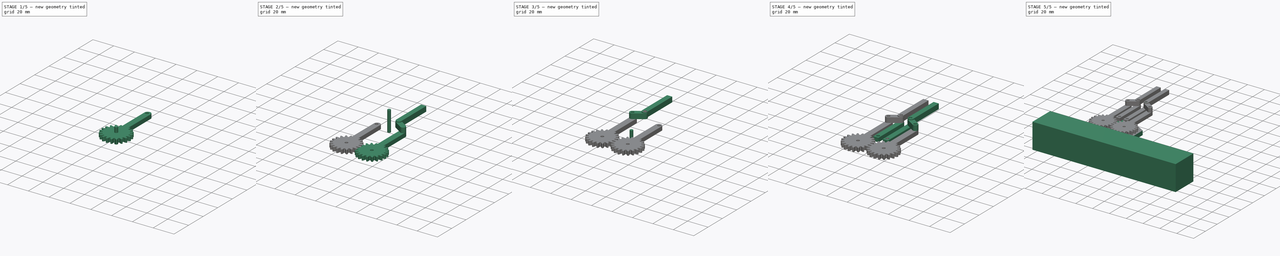
[diagram: build sequence overview — one tinted view per stage of 5, left to right]
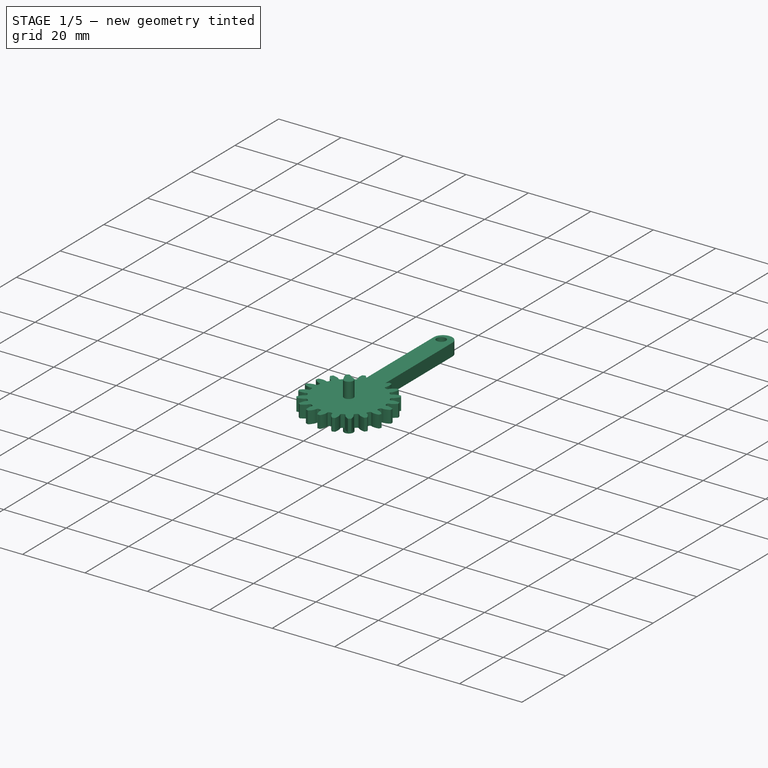
[diagram: stage 1 of 5 — iso view after this stage's code; geometry added in this stage tinted green]
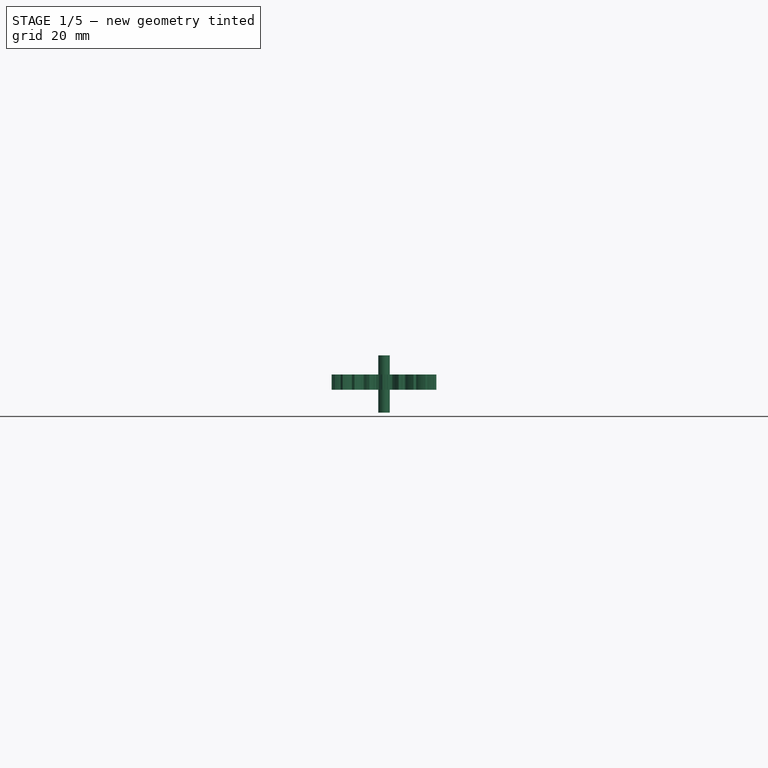
[diagram: stage 1 of 5 — front view after this stage's code; geometry added in this stage tinted green]
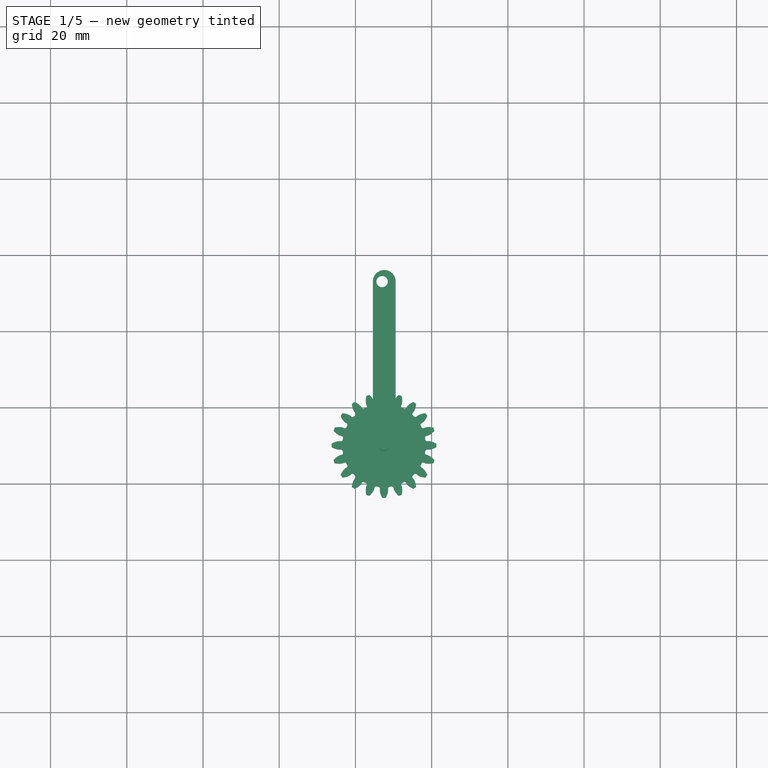
[diagram: stage 1 of 5 — top view after this stage's code; geometry added in this stage tinted green]
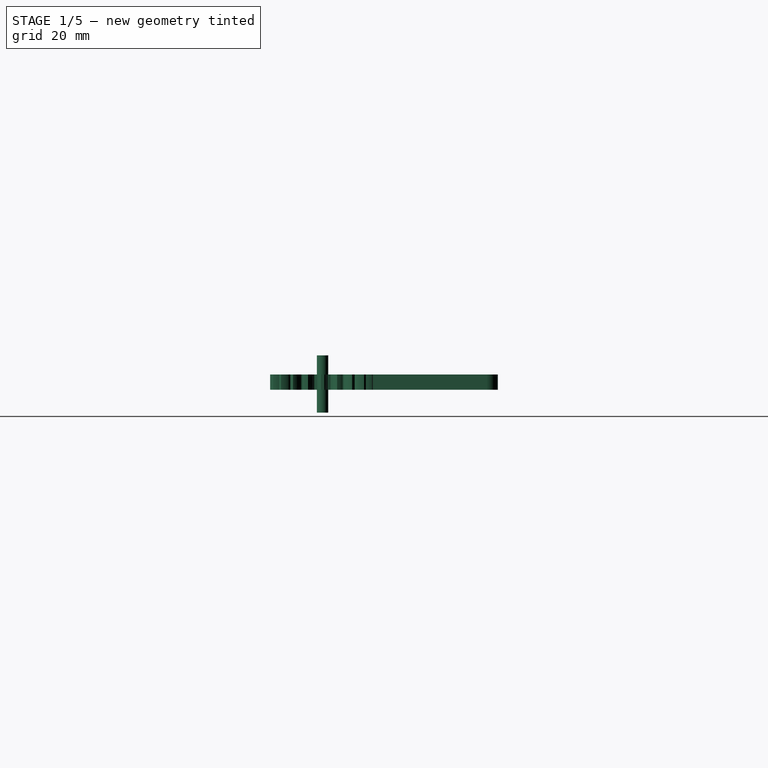
[diagram: stage 1 of 5 — right view after this stage's code; geometry added in this stage tinted green]
FCSTD DOCUMENT  (FreeCAD 0.19R24291 (Git))
Label: pinza_paralela_design
License: All rights reserved
LicenseURL: http://en.wikipedia.org/wiki/All_rights_reserved
objects: Part::Cut×19, Part::Mirroring×10, Part::Extrusion×7, Sketcher::SketchObject×6, Part::Cylinder×5, Part::MultiFuse×2, Part::Part2DObjectPython×1, Part::Box×1
note: 51 computed .brp shape members not serialized (recipe doc carries the construction recipe); baked Part::Feature solids carry a one-line shape summary decoded from their .brp

FEATURE [Sketcher::SketchObject] Sketch001  label="Sketch base"
  FullyConstrained = true
  sketch-geometry (6):
    g0: LineSegment StartX=-27.5 StartY=-20 StartZ=0 EndX=-27.5 EndY=20 EndZ=0
    g1: LineSegment StartX=-27.5 StartY=20 StartZ=0 EndX=-10 EndY=30.1036 EndZ=0
    g2: LineSegment StartX=-10 StartY=30.1036 StartZ=0 EndX=10 EndY=30.1036 EndZ=0
    g3: LineSegment StartX=10 StartY=30.1036 StartZ=0 EndX=27.5 EndY=20 EndZ=0
    g4: LineSegment StartX=27.5 StartY=20 StartZ=0 EndX=27.5 EndY=-20 EndZ=0
    g5: LineSegment StartX=-27.5 StartY=-20 StartZ=0 EndX=27.5 EndY=-20 EndZ=0
  constraints (17):
    c: Vertical(g0)
    c: Coincident(g1,g0)
    c: Coincident(g2,g1)
    c: Horizontal(g2)
    c: Coincident(g3,g2)
    c: Coincident(g4,g3)
    c: Equal(g0,g4)
    c: Equal(g1,g3)
    c: Vertical(g4)
    c: Coincident(g5,g0)
    c: Coincident(g5,g4)
    c: DistanceX(g5,g5) = 55
    c: DistanceY(g0,g0) = 40
    c: Parallel(g2,g5)
    c: Symmetric(g0,g4,g-1)
    c: DistanceX(g2,g2) = 20
    c: Angle(g3,g4) = 2.0944
FEATURE [Part::Extrusion] Extrude003  label="Falange1"
  Base = -> Sketch
  Dir = (0,0,1)
  DirMode = 2
  FaceMakerClass = Part::FaceMakerBullseye
  LengthFwd = 4
  LengthRev = 0
  Placement = pos=(-62.5,13,5) rot=(0,0,1;0rad)
  Solid = true
  Symmetric = false
FEATURE [Part::Mirroring] Part__Mirroring001  label="Falange1 (Mirror #2)"
  Base = (0,0,0)
  Normal = (1,0,0)
  Source = -> Extrude003
FEATURE [Part::Cylinder] Cylinder001  label="Cylinder"
  Angle = 360
  AttacherType = Attacher::AttachEngine3D
  Height = 15
  Placement = pos=(12.5,10,-1) rot=(0,0,1;0rad)
  Radius = 1.5
FEATURE [Part::Mirroring] Part__Mirroring006  label="Cylinder (Mirror #7)"
  Base = (0,0,0)
  Normal = (1,0,0)
  Source = -> Cylinder001
FEATURE [Part::Extrusion] Extrude  label="Engranaje 1"
  Base = -> InvoluteGear
  Dir = (0,0,1)
  DirMode = 2
  FaceMakerClass = Part::FaceMakerBullseye
  LengthFwd = 4
  LengthRev = 0
  Placement = pos=(12.5,10,5) rot=(0,0,1;0rad)
  Solid = true
  Symmetric = false
FEATURE [Part::Mirroring] Part__Mirroring  label="Engranaje 1 (Mirror #1)"
  Base = (0,0,0)
  Normal = (1,0,0)
  Source = -> Extrude
FEATURE [Part::Cylinder] Cylinder003  label="Tornillo"
  Angle = 360
  AttacherType = Attacher::AttachEngine3D
  Height = 15
  Placement = pos=(13,53,4) rot=(0,0,1;0rad)
  Radius = 1.5
FEATURE [Part::Mirroring] Part__Mirroring008  label="Tornillo (Mirror #9)"
  Base = (0,0,0)
  Normal = (1,0,0)
  Source = -> Cylinder003
FEATURE [Part::Cut] Cut011  label="Fal izq torn"
  Base = -> Part__Mirroring001
  Refine = true
  Tool = -> Part__Mirroring008
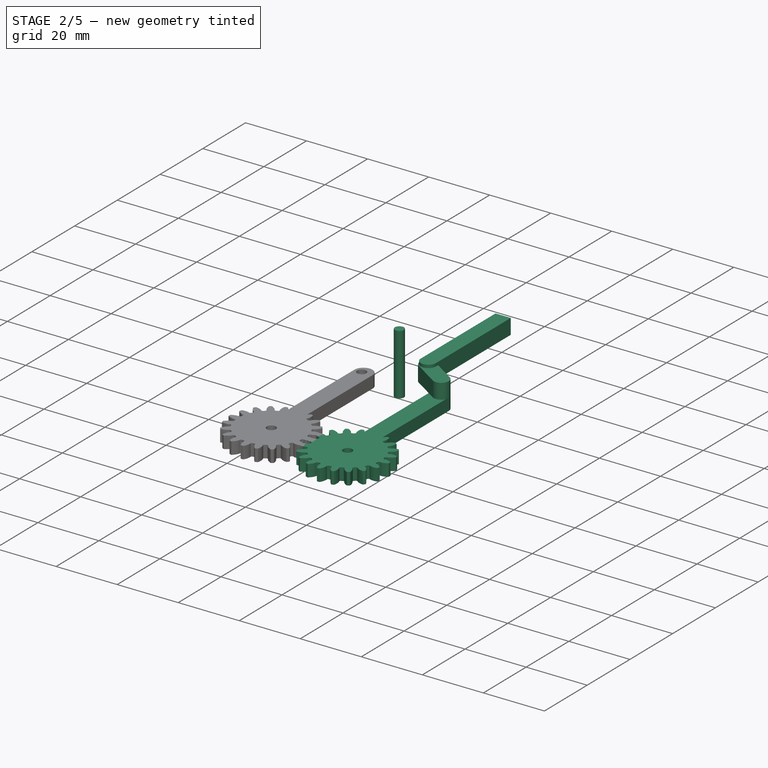
[diagram: stage 2 of 5 — iso view after this stage's code; geometry added in this stage tinted green]
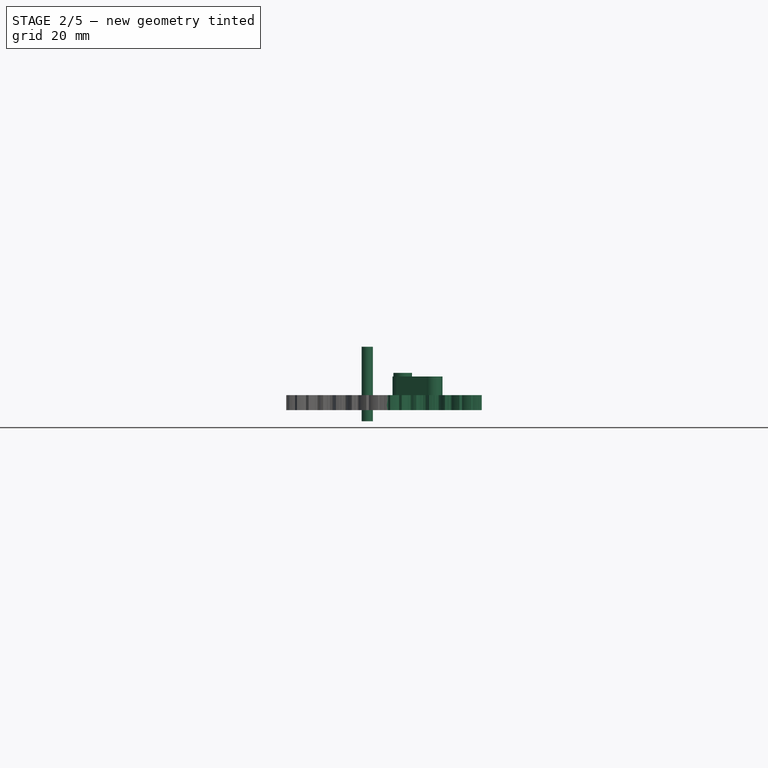
[diagram: stage 2 of 5 — front view after this stage's code; geometry added in this stage tinted green]
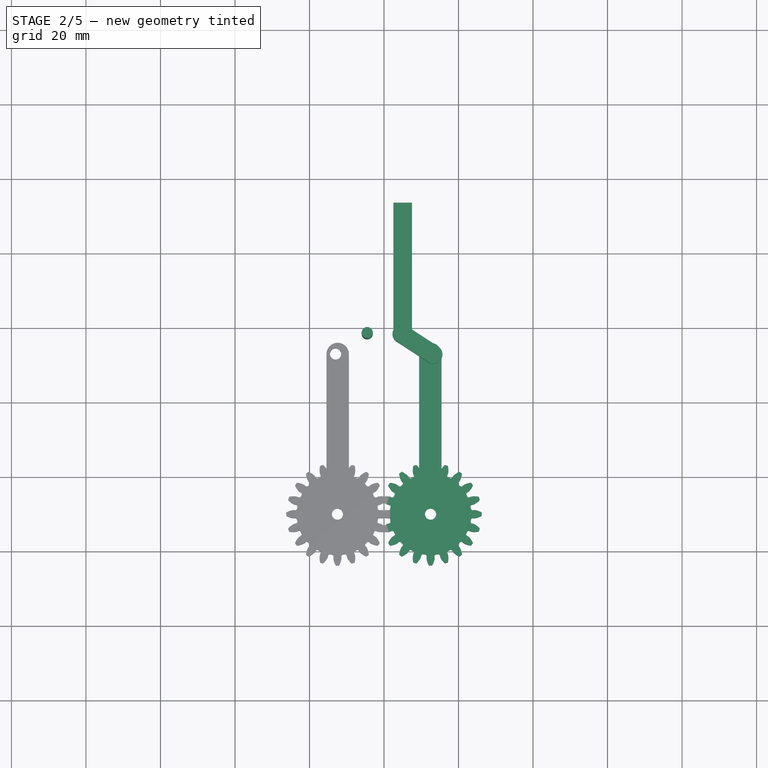
[diagram: stage 2 of 5 — top view after this stage's code; geometry added in this stage tinted green]
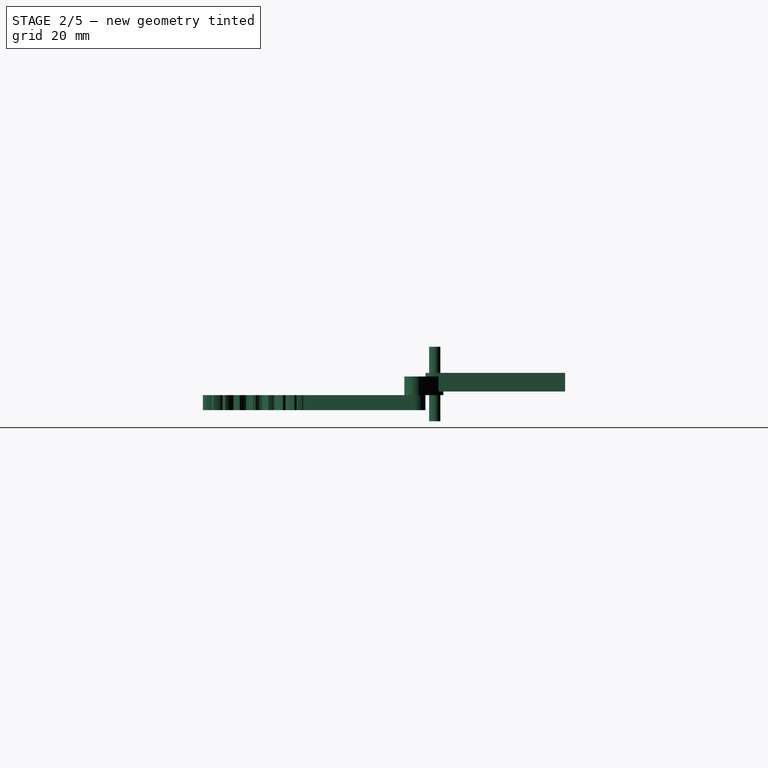
[diagram: stage 2 of 5 — right view after this stage's code; geometry added in this stage tinted green]
FEATURE [Sketcher::SketchObject] Sketch004  label="Sk_dedos"
  FullyConstrained = true
  sketch-geometry (4):
    g0: LineSegment StartX=-2.5 StartY=17.5 StartZ=0 EndX=2.5 EndY=17.5 EndZ=0
    g1: LineSegment StartX=2.5 StartY=17.5 StartZ=0 EndX=2.5 EndY=-17.5 EndZ=0
    g2: LineSegment StartX=-2.5 StartY=-17.5 StartZ=0 EndX=-2.5 EndY=17.5 EndZ=0
    g3: ArcOfCircle CenterX=0 CenterY=-17.5 CenterZ=0 NormalX=0 NormalY=0 NormalZ=1 AngleXU=0 Radius=2.5 StartAngle=3.14159 EndAngle=6.28319
  constraints (12):
    c: Coincident(g0,g1)
    c: Coincident(g2,g0)
    c: Horizontal(g0)
    c: Vertical(g1)
    c: Vertical(g2)
    c: DistanceY(g1,g1) = 35
    c: Coincident(g3,g1)
    c: DistanceX(g0,g0) = 5
    c: Symmetric(g1,g0,g-1)
    c: Angle(g3) = 3.14159
    c: Coincident(g3,g2)
    c: Equal(g2,g1)
FEATURE [Part::Extrusion] Extrude006  label="Dedo"
  Base = -> Sketch004
  Dir = (0,0,1)
  DirMode = 2
  FaceMakerClass = Part::FaceMakerBullseye
  LengthFwd = 5
  LengthRev = 0
  Placement = pos=(5,76,10) rot=(0,0,1;0rad)
  Solid = true
  Symmetric = false
FEATURE [Sketcher::SketchObject] Sketch005  label="Sk Union falanges001"
  FullyConstrained = true
  Placement = pos=(0,0,12) rot=(0,0,1;0rad)
  sketch-geometry (4):
    g0: LineSegment StartX=6.26584 StartY=59.9849 StartZ=0 EndX=14.1491 EndY=54.8648 EndZ=0
    g1: LineSegment StartX=3.43221 StartY=55.9174 StartZ=0 EndX=11.3154 EndY=50.7973 EndZ=0
    g2: ArcOfCircle CenterX=4.58128 CenterY=58.1376 CenterZ=0 NormalX=0 NormalY=0 NormalZ=1 AngleXU=0 Radius=2.5 StartAngle=0.831422 EndAngle=4.23481
    g3: ArcOfCircle CenterX=13 CenterY=52.6446 CenterZ=0 NormalX=0 NormalY=0 NormalZ=1 AngleXU=0 Radius=2.5 StartAngle=3.97301 EndAngle=7.37641
  constraints (11):
    c: Equal(g1,g0)
    c: Coincident(g2,g1)
    c: Coincident(g2,g0)
    c: Coincident(g3,g1)
    c: Coincident(g3,g0)
    c: Distance(g0) = 9.4
    c: Equal(g3,g2)
    c: Block(g0)
    c: Block(g3)
    c: Block(g1)
    c: Block(g2)
FEATURE [Part::Extrusion] Extrude007  label="Union falange001"
  Base = -> Sketch005
  Dir = (0,0,1)
  DirMode = 2
  FaceMakerClass = Part::FaceMakerBullseye
  LengthFwd = 5
  LengthRev = 0
  Placement = pos=(0.18891,0.183964,-3) rot=(0,0,1;0rad)
  Solid = true
  Symmetric = false
FEATURE [Part::Cut] Cut003  label="Engranaje der tornillo"
  Base = -> Extrude
  Refine = true
  Tool = -> Cylinder001
FEATURE [Part::Cut] Cut004  label="Engranaje izq tornillo"
  Base = -> Part__Mirroring
  Refine = true
  Tool = -> Part__Mirroring006
FEATURE [Part::Cut] Cut009  label="Fal der tornillo"
  Base = -> Extrude003
  Refine = true
  Tool = -> Cylinder003
FEATURE [Part::Cylinder] Cylinder004  label="Tornillo001"
  Angle = 360
  AttacherType = Attacher::AttachEngine3D
  Height = 20
  Placement = pos=(4.5,58.5,2) rot=(0,0,1;0rad)
  Radius = 1.5
FEATURE [Part::Mirroring] Part__Mirroring009  label="Tornillo001 (Mirror #10)"
  Base = (0,0,0)
  Normal = (1,0,0)
  Source = -> Cylinder004
FEATURE [Part::MultiFuse] Fusion  label="Eng/fal der"
  Refine = true
  Shapes = -> [Cut003,Cut009]
FEATURE [Part::MultiFuse] Fusion001  label="Eng/fal izq"
  Refine = true
  Shapes = -> [Cut011,Cut004]
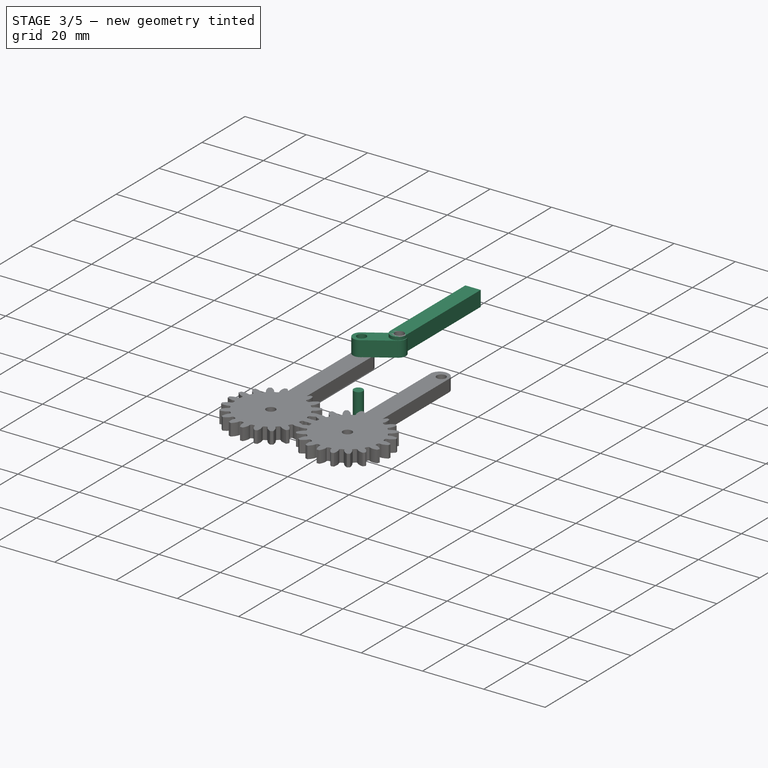
[diagram: stage 3 of 5 — iso view after this stage's code; geometry added in this stage tinted green]
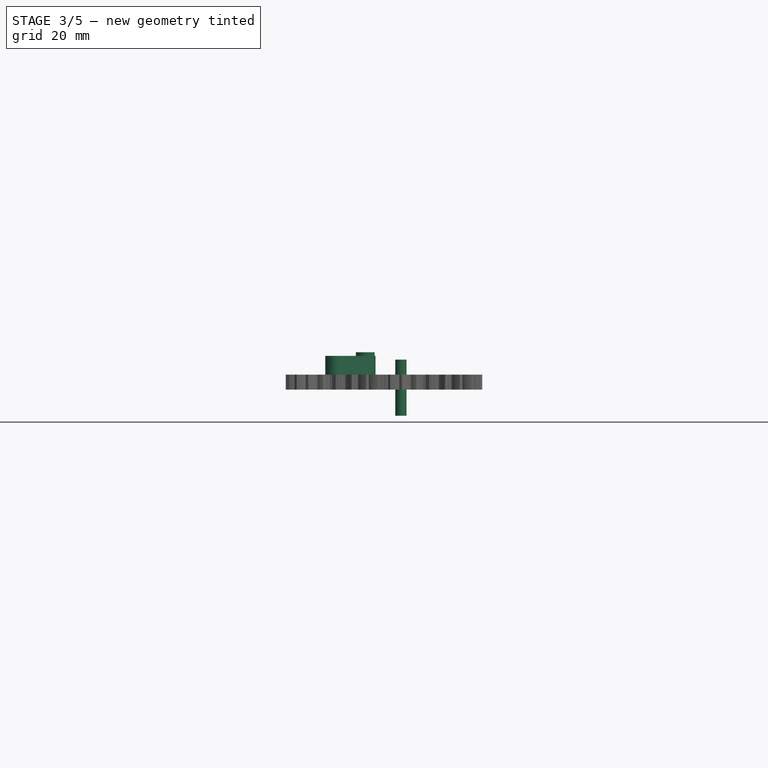
[diagram: stage 3 of 5 — front view after this stage's code; geometry added in this stage tinted green]
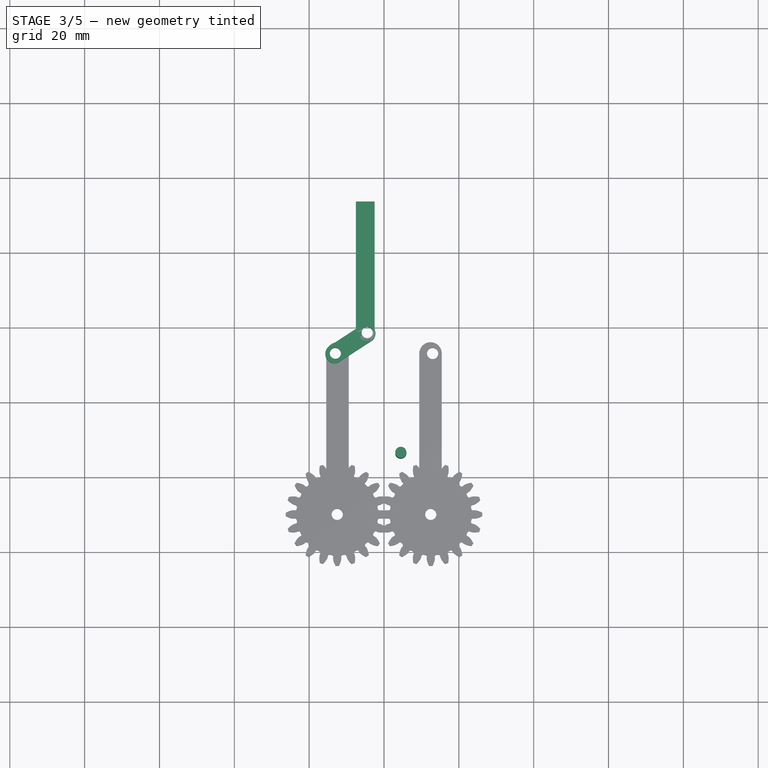
[diagram: stage 3 of 5 — top view after this stage's code; geometry added in this stage tinted green]
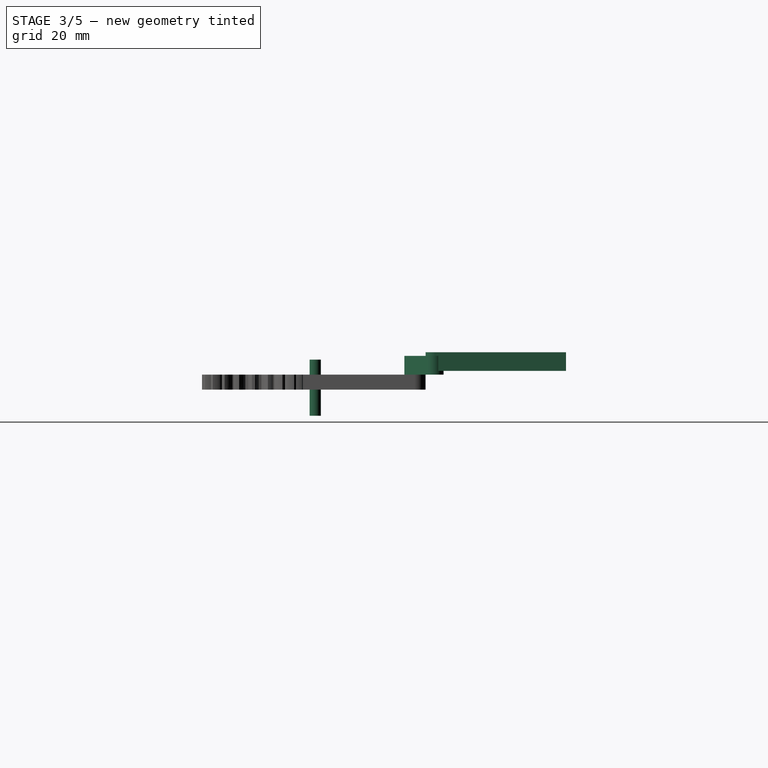
[diagram: stage 3 of 5 — right view after this stage's code; geometry added in this stage tinted green]
FEATURE [Sketcher::SketchObject] Sketch003  label="Sk Union falanges"
  FullyConstrained = true
  Placement = pos=(0,0,12) rot=(0,0,1;0rad)
  sketch-geometry (4):
    g0: LineSegment StartX=6.26584 StartY=59.9849 StartZ=0 EndX=14.1491 EndY=54.8648 EndZ=0
    g1: LineSegment StartX=3.43221 StartY=55.9174 StartZ=0 EndX=11.3154 EndY=50.7973 EndZ=0
    g2: ArcOfCircle CenterX=4.58128 CenterY=58.1376 CenterZ=0 NormalX=0 NormalY=0 NormalZ=1 AngleXU=0 Radius=2.5 StartAngle=0.831422 EndAngle=4.23481
    g3: ArcOfCircle CenterX=13 CenterY=52.6446 CenterZ=0 NormalX=0 NormalY=0 NormalZ=1 AngleXU=0 Radius=2.5 StartAngle=3.97301 EndAngle=7.37641
  constraints (11):
    c: Equal(g1,g0)
    c: Coincident(g2,g1)
    c: Coincident(g2,g0)
    c: Coincident(g3,g1)
    c: Coincident(g3,g0)
    c: Distance(g0) = 9.4
    c: Equal(g3,g2)
    c: Block(g0)
    c: Block(g3)
    c: Block(g1)
    c: Block(g2)
FEATURE [Part::Extrusion] Extrude005  label="Union falange"
  Base = -> Sketch003
  Dir = (0,0,1)
  DirMode = 2
  FaceMakerClass = Part::FaceMakerBullseye
  LengthFwd = 5
  LengthRev = 0
  Placement = pos=(0.18891,0.183964,-3) rot=(0,0,1;0rad)
  Solid = true
  Symmetric = false
FEATURE [Part::Mirroring] Part__Mirroring003  label="Union falange (Mirror #4)"
  Base = (0,0,0)
  Normal = (1,0,0)
  Source = -> Extrude005
FEATURE [Part::Cut] Cut  label="Dedo ajustado"
  Base = -> Extrude006
  Refine = true
  Tool = -> Extrude007
FEATURE [Part::Mirroring] Part__Mirroring004  label="Dedo ajustado (Mirror #5)"
  Base = (0,0,0)
  Normal = (1,0,0)
  Source = -> Cut
FEATURE [Part::Cylinder] Cylinder002
  Angle = 360
  AttacherType = Attacher::AttachEngine3D
  Height = 15
  Placement = pos=(4.5,26.5,-2) rot=(0,0,1;0rad)
  Radius = 1.5
FEATURE [Part::Cut] Cut012  label="Union izq tornillo"
  Base = -> Part__Mirroring003
  Refine = true
  Tool = -> Part__Mirroring008
FEATURE [Part::Cut] Cut017  label="Union izq completa"
  Base = -> Cut012
  Refine = true
  Tool = -> Part__Mirroring009
FEATURE [Part::Cut] Cut018  label="dedo izq"
  Base = -> Part__Mirroring004
  Refine = true
  Tool = -> Part__Mirroring009
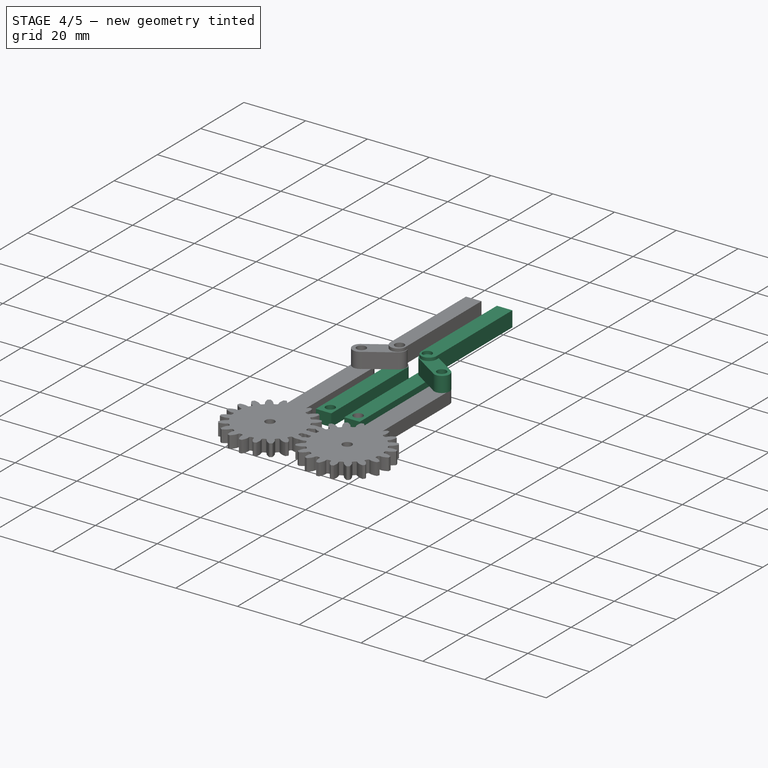
[diagram: stage 4 of 5 — iso view after this stage's code; geometry added in this stage tinted green]
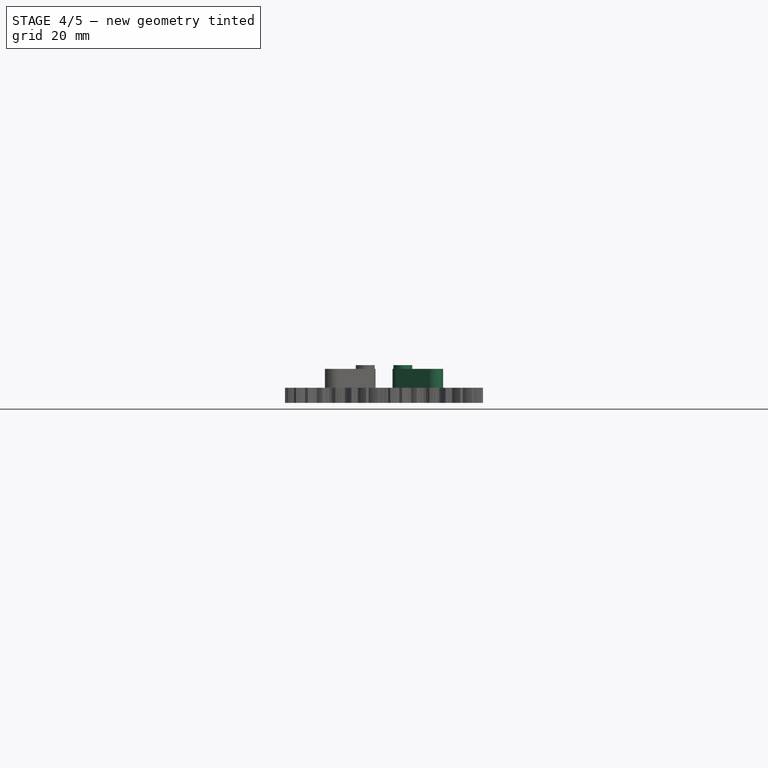
[diagram: stage 4 of 5 — front view after this stage's code; geometry added in this stage tinted green]
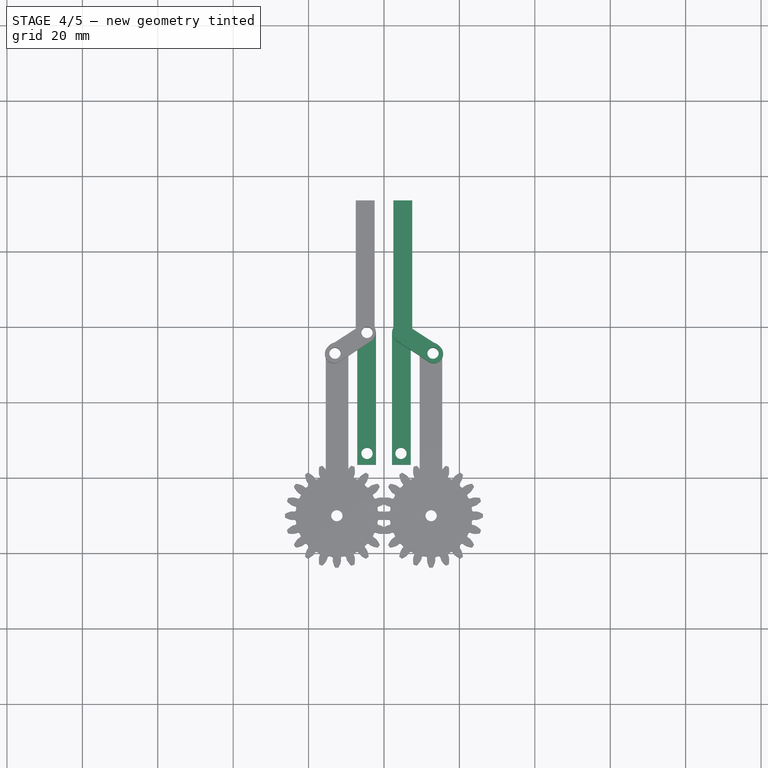
[diagram: stage 4 of 5 — top view after this stage's code; geometry added in this stage tinted green]
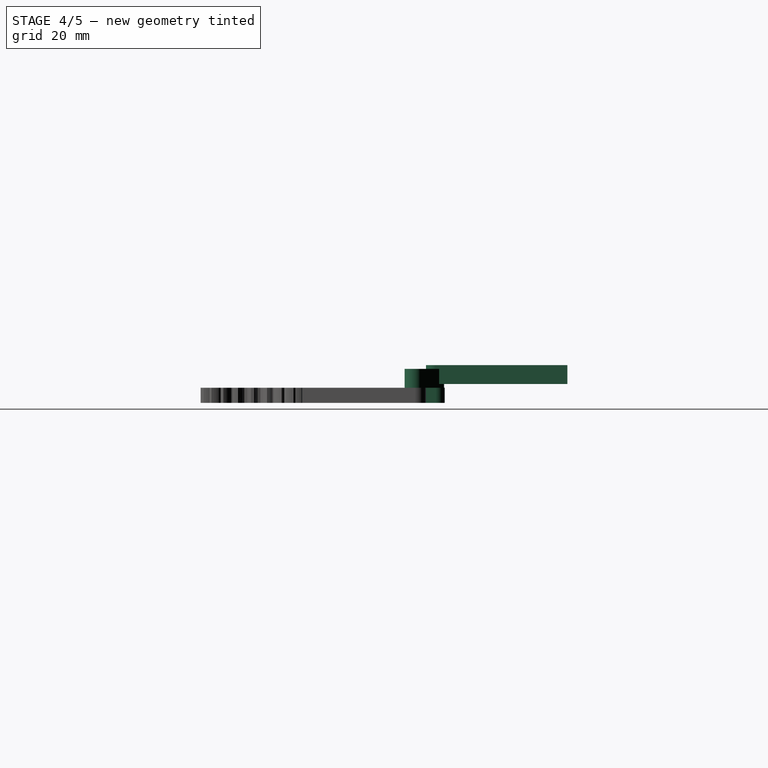
[diagram: stage 4 of 5 — right view after this stage's code; geometry added in this stage tinted green]
FEATURE [Sketcher::SketchObject] Sketch002  label="sk_Falange002"
  FullyConstrained = false
  sketch-geometry (4):
    g0: LineSegment StartX=50.6077 StartY=0 StartZ=0 EndX=50.6077 EndY=35 EndZ=0
    g1: LineSegment StartX=55.6077 StartY=0 StartZ=0 EndX=55.6077 EndY=35 EndZ=0
    g2: LineSegment StartX=50.6077 StartY=0 StartZ=0 EndX=55.6077 EndY=0 EndZ=0
    g3: ArcOfCircle CenterX=53.1077 CenterY=35 CenterZ=0 NormalX=0 NormalY=0 NormalZ=1 AngleXU=0 Radius=2.5 StartAngle=6.28318 EndAngle=9.42478
  constraints (12):
    c: Vertical(g0)
    c: Vertical(g1)
    c: Coincident(g2,g0)
    c: Horizontal(g2)
    c: Equal(g0,g1)
    c: Coincident(g2,g1)
    c: Distance(g0) = 35
    c: PointOnObject(g0,g-1)
    c: DistanceX(g2,g2) = 5
    c: Coincident(g3,g0)
    c: Coincident(g3,g1)
    c: Radius(g3) = 2.5
FEATURE [Part::Extrusion] Extrude004  label="Falange_interno1"
  Base = -> Sketch002
  Dir = (0,0,1)
  DirMode = 2
  FaceMakerClass = Part::FaceMakerBullseye
  LengthFwd = 4
  LengthRev = 0
  Placement = pos=(-48.5,23.5,5) rot=(0,0,1;0rad)
  Solid = true
  Symmetric = false
FEATURE [Part::Mirroring] Part__Mirroring002  label="Falange_interno1 (Mirror #3)"
  Base = (0,0,0)
  Normal = (1,0,0)
  Source = -> Extrude004
FEATURE [Part::Mirroring] Part__Mirroring007  label="Cylinder002 (Mirror #8)"
  Base = (0,0,0)
  Normal = (1,0,0)
  Source = -> Cylinder002
FEATURE [Part::Cut] Cut006  label="Falange interna der tornillo"
  Base = -> Extrude004
  Refine = true
  Tool = -> Cylinder002
FEATURE [Part::Cut] Cut008  label="Falange izq interna tornillo"
  Base = -> Part__Mirroring002
  Refine = true
  Tool = -> Part__Mirroring007
FEATURE [Part::Cut] Cut010  label="Union der tornillo"
  Base = -> Extrude005
  Refine = true
  Tool = -> Cylinder003
FEATURE [Part::Cut] Cut014  label="dedo der "
  Base = -> Cut
  Refine = true
  Tool = -> Cylinder004
FEATURE [Part::Cut] Cut015  label="Fal interna der"
  Base = -> Cut006
  Refine = true
  Tool = -> Cylinder004
FEATURE [Part::Cut] Cut016  label="Fal interna izq"
  Base = -> Cut008
  Refine = true
  Tool = -> Part__Mirroring009
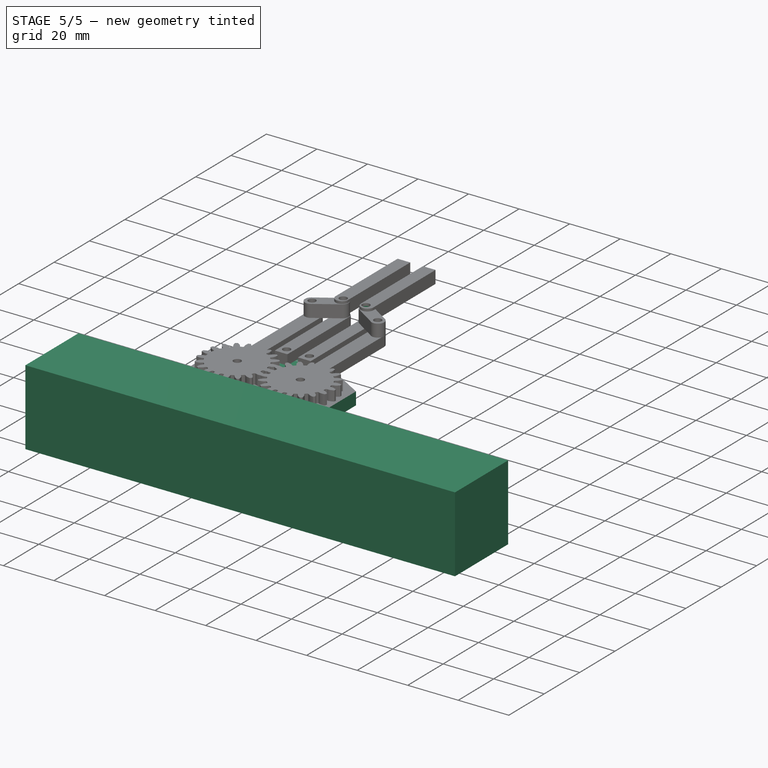
[diagram: stage 5 of 5 — iso view after this stage's code; geometry added in this stage tinted green]
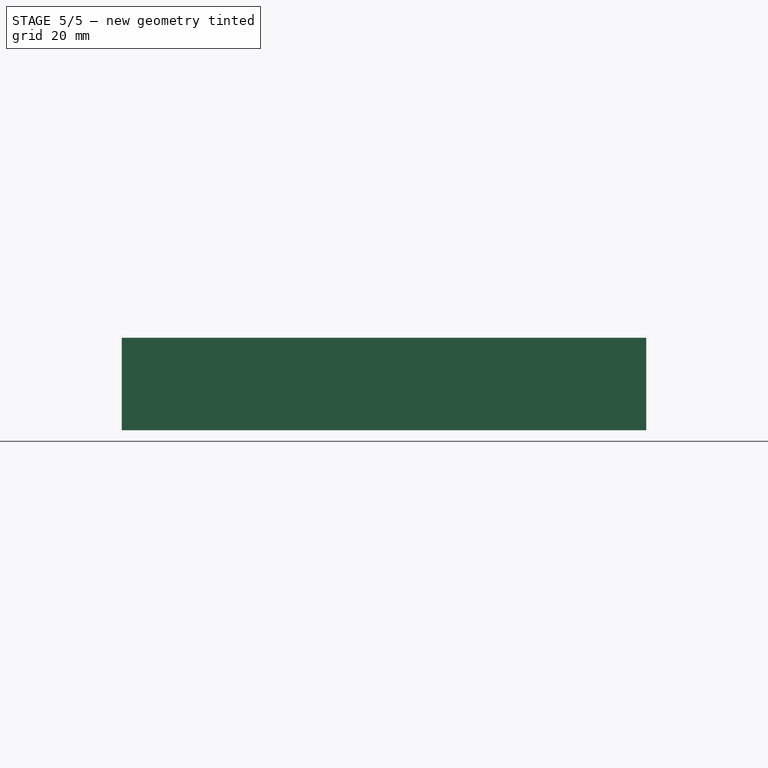
[diagram: stage 5 of 5 — front view after this stage's code; geometry added in this stage tinted green]
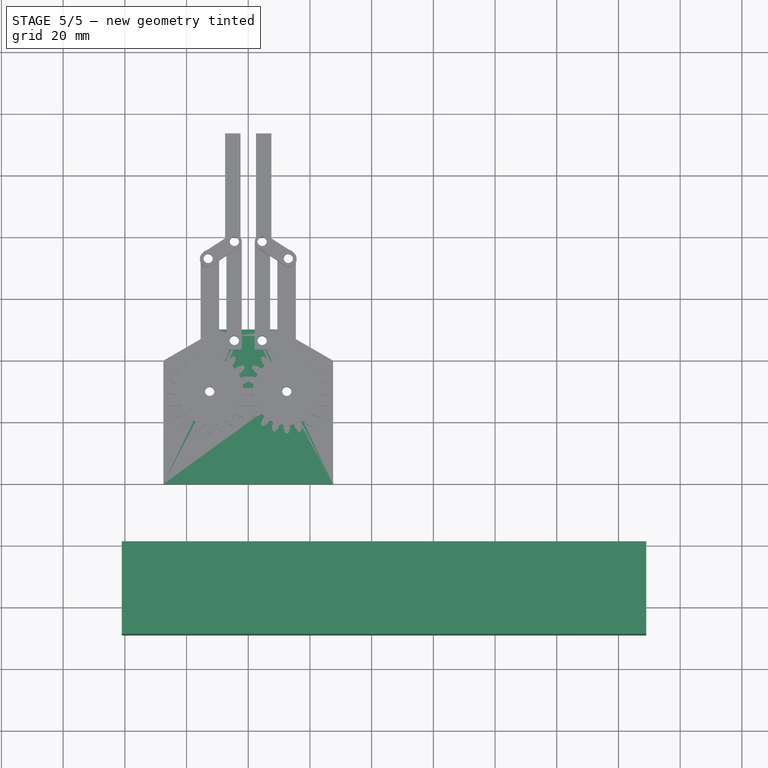
[diagram: stage 5 of 5 — top view after this stage's code; geometry added in this stage tinted green]
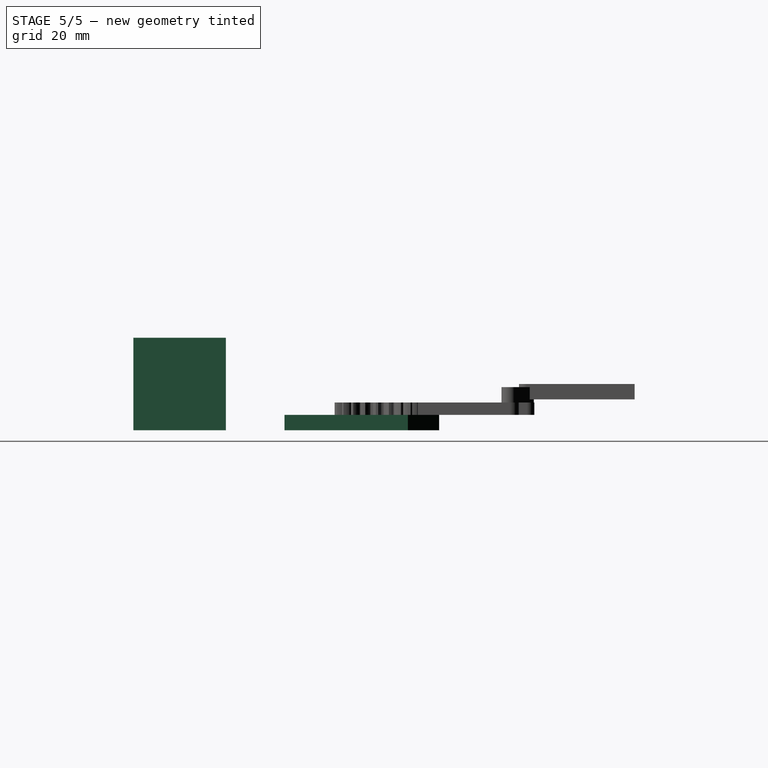
[diagram: stage 5 of 5 — right view after this stage's code; geometry added in this stage tinted green]
FEATURE [Sketcher::SketchObject] Sketch  label="sk_Falange1"
  FullyConstrained = false
  sketch-geometry (4):
    g0: LineSegment StartX=71.9329 StartY=0 StartZ=0 EndX=71.9329 EndY=40 EndZ=0
    g1: LineSegment StartX=77.9329 StartY=0 StartZ=0 EndX=77.9329 EndY=40 EndZ=0
    g2: LineSegment StartX=71.9329 StartY=0 StartZ=0 EndX=77.9329 EndY=0 EndZ=0
    g3: ArcOfCircle CenterX=74.9329 CenterY=40 CenterZ=0 NormalX=0 NormalY=0 NormalZ=1 AngleXU=0 Radius=3 StartAngle=6.28319 EndAngle=9.42478
  constraints (11):
    c: Vertical(g0)
    c: Vertical(g1)
    c: Horizontal(g2)
    c: Equal(g0,g1)
    c: Distance(g0) = 40
    c: Distance(g2) = 6
    c: Coincident(g3,g0)
    c: Coincident(g3,g1)
    c: Radius(g3) = 3
    c: Coincident(g2,g0)
    c: Coincident(g1,g2)
FEATURE [Part::Part2DObjectPython] InvoluteGear  # Draft 2D object (typed FeaturePython)
  ExternalGear = true
  HighPrecision = true
  Modules = 1.25
  NumberOfTeeth = 20
  PressureAngle = 20
FEATURE [Part::Box] Box  label="Cube"
  AttacherType = Attacher::AttachEngine3D
  Height = 30
  Length = 170
  Placement = pos=(-41,-69,0) rot=(0,0,1;0rad)
  Width = 30
FEATURE [Part::Extrusion] Extrude002  label="Base"
  Base = -> Sketch001
  Dir = (0,0,1)
  DirMode = 2
  FaceMakerClass = Part::FaceMakerBullseye
  LengthFwd = 5
  LengthRev = 0
  Solid = true
  Symmetric = false
FEATURE [Part::Cylinder] Cylinder  label="Hueco tornillo"
  Angle = 360
  AttacherType = Attacher::AttachEngine3D
  Height = 15
  Placement = pos=(12.5,10,-1) rot=(0,0,1;0rad)
  Radius = 1.5
FEATURE [Part::Mirroring] Part__Mirroring005  label="Hueco tornillo (Mirror #6)"
  Base = (0,0,0)
  Normal = (1,0,0)
  Source = -> Cylinder
FEATURE [Part::Cut] Cut001  label="tornillo derecha"
  Base = -> Extrude002
  Refine = true
  Tool = -> Cylinder
FEATURE [Part::Cut] Cut002  label="Base tornillos"
  Base = -> Cut001
  Refine = true
  Tool = -> Part__Mirroring005
FEATURE [Part::Cut] Cut005  label="Base tornillo interno1"
  Base = -> Cut002
  Refine = true
  Tool = -> Cylinder002
FEATURE [Part::Cut] Cut007  label="Base tornillos dedos"
  Base = -> Cut005
  Refine = true
  Tool = -> Part__Mirroring007
FEATURE [Part::Cut] Cut013  label="Union der completa"
  Base = -> Cut010
  Refine = true
  Tool = -> Cylinder004
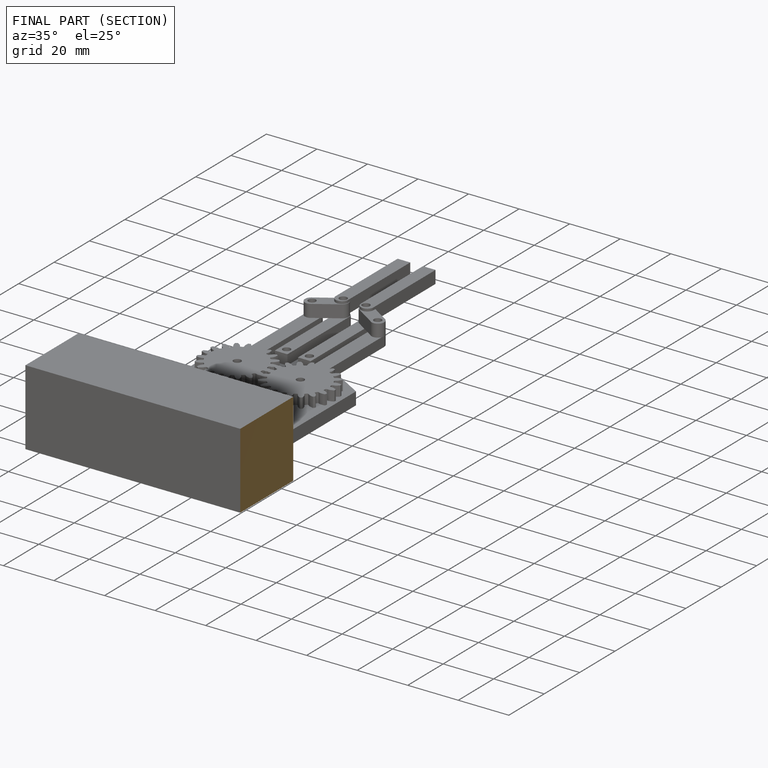
[diagram: finished part — half-section view (interior)]
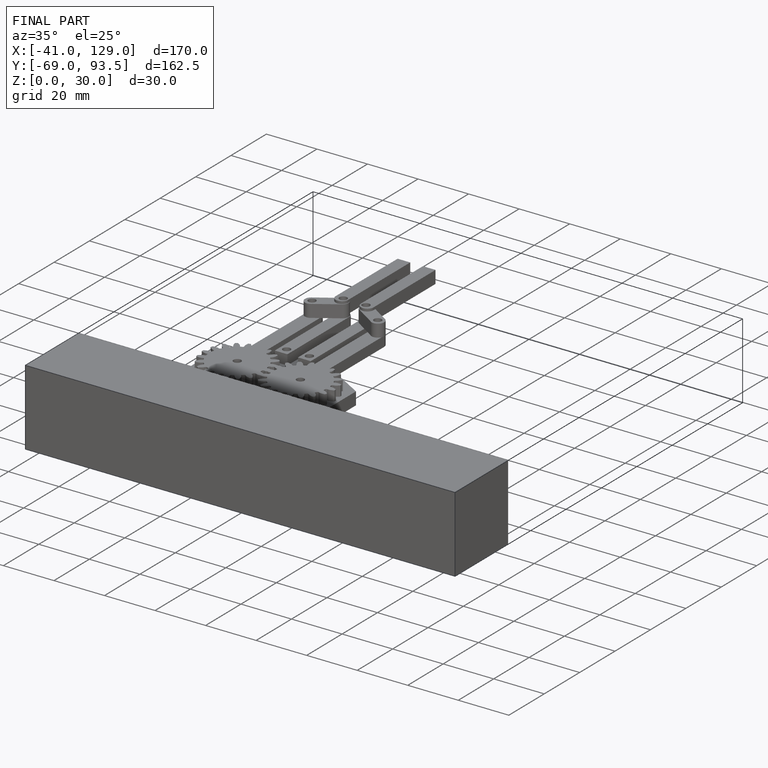
[diagram: finished part — iso view with bounding-box wireframe]
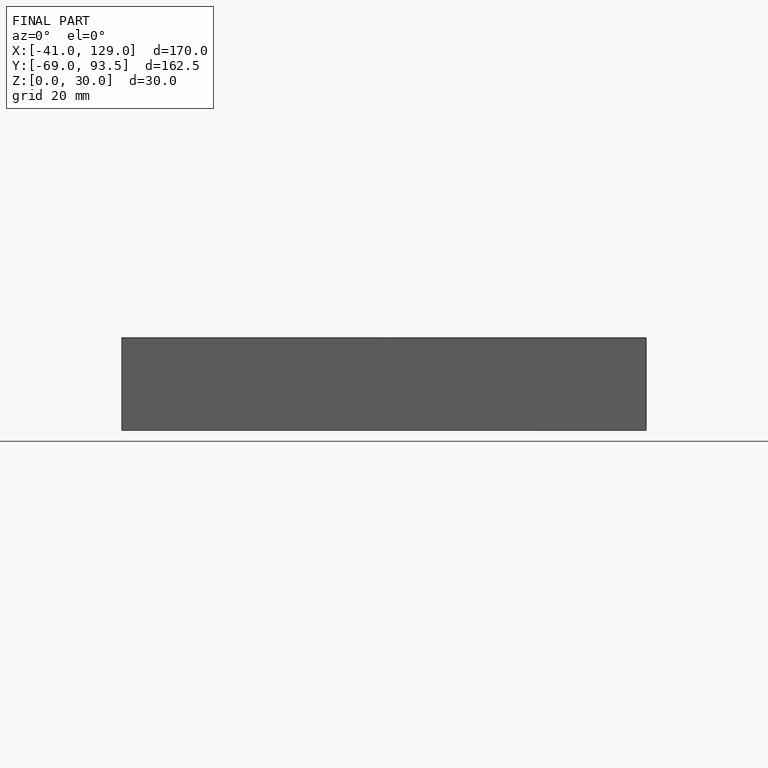
[diagram: finished part — front view with bounding-box wireframe]
